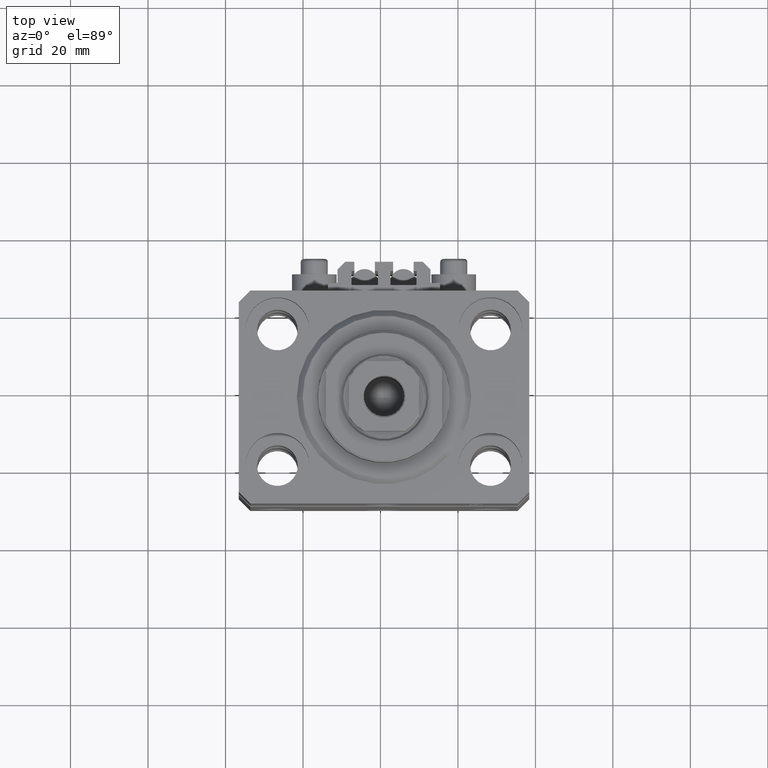
[diagram: clean part render]
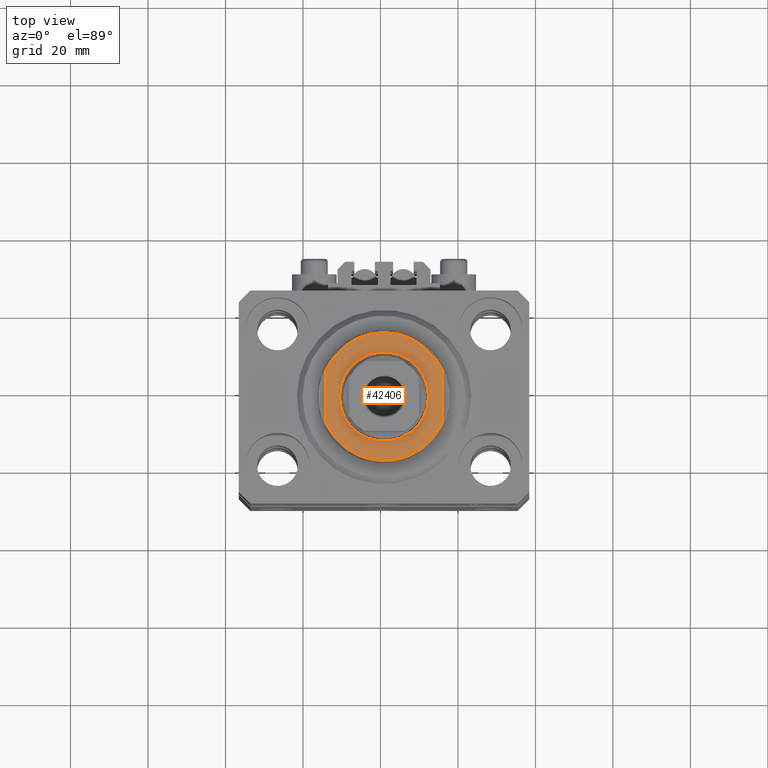
[diagram: same view with one face highlighted and labeled with its STEP entity id]
A machine part, top view. The second image highlights one B-rep face of the part: STEP entity #42406.
In plain terms, the highlighted planar face has unit normal (0, 0, 1).
Its self-contained STEP definition (entity closure, byte-faithful):
#206 = VERTEX_POINT ( 'NONE', #43262 ) ;
#734 = CARTESIAN_POINT ( 'NONE',  ( 0.000000000000000000, 0.000000000000000000, -8.000000000000000000 ) ) ;
#1948 = CARTESIAN_POINT ( 'NONE',  ( -14.99999999999999645, 6.873863542433765517, -8.000000000000000000 ) ) ;
#3260 = VERTEX_POINT ( 'NONE', #1948 ) ;
#3452 = AXIS2_PLACEMENT_3D ( 'NONE', #47887, #28888, #48629 ) ;
#3453 = VECTOR ( 'NONE', #31988, 1000.000000000000000 ) ;
#4155 = CARTESIAN_POINT ( 'NONE',  ( -14.99999999999999645, -6.873863542433765517, -8.000000000000000000 ) ) ;
#5007 = VERTEX_POINT ( 'NONE', #35986 ) ;
#8064 = DIRECTION ( 'NONE',  ( -0.000000000000000000, -0.000000000000000000, 1.000000000000000000 ) ) ;
#8436 = CARTESIAN_POINT ( 'NONE',  ( -11.50000000000000355, 0.000000000000000000, -8.000000000000000000 ) ) ;
#9179 = EDGE_LOOP ( 'NONE', ( #20290, #35973 ) ) ;
#9284 = DIRECTION ( 'NONE',  ( 0.000000000000000000, 0.000000000000000000, -1.000000000000000000 ) ) ;
#9534 = FACE_BOUND ( 'NONE', #9179, .T. ) ;
#9579 = CARTESIAN_POINT ( 'NONE',  ( 15.00000000000000000, -42.42640687119285303, -8.000000000000000000 ) ) ;
#9889 = LINE ( 'NONE', #13571, #42773 ) ;
#10151 = VERTEX_POINT ( 'NONE', #20973 ) ;
#10521 = CIRCLE ( 'NONE', #37256, 16.50000000000000000 ) ;
#10991 = ORIENTED_EDGE ( 'NONE', *, *, #48673, .T. ) ;
#12688 = EDGE_CURVE ( 'NONE', #5007, #47270, #10521, .T. ) ;
#12884 = DIRECTION ( 'NONE',  ( -1.000000000000000000, 0.000000000000000000, 0.000000000000000000 ) ) ;
#13126 = DIRECTION ( 'NONE',  ( -0.000000000000000000, -0.000000000000000000, 1.000000000000000000 ) ) ;
#13571 = CARTESIAN_POINT ( 'NONE',  ( -15.00000000000000000, -42.42640687119285303, -8.000000000000000000 ) ) ;
#13632 = ORIENTED_EDGE ( 'NONE', *, *, #29846, .T. ) ;
#20088 = CARTESIAN_POINT ( 'NONE',  ( 0.000000000000000000, 0.000000000000000000, -8.000000000000000000 ) ) ;
#20253 = CARTESIAN_POINT ( 'NONE',  ( 0.000000000000000000, 0.000000000000000000, -8.000000000000000000 ) ) ;
#20290 = ORIENTED_EDGE ( 'NONE', *, *, #46423, .T. ) ;
#20492 = AXIS2_PLACEMENT_3D ( 'NONE', #27748, #9284, #42798 ) ;
#20839 = ORIENTED_EDGE ( 'NONE', *, *, #48158, .F. ) ;
#20973 = CARTESIAN_POINT ( 'NONE',  ( 14.99999999999999645, 6.873863542433765517, -8.000000000000000000 ) ) ;
#23768 = EDGE_CURVE ( 'NONE', #206, #27478, #45040, .T. ) ;
#24346 = LINE ( 'NONE', #9579, #3453 ) ;
#25853 = DIRECTION ( 'NONE',  ( -0.000000000000000000, -1.000000000000000000, -0.000000000000000000 ) ) ;
#27478 = VERTEX_POINT ( 'NONE', #8436 ) ;
#27748 = CARTESIAN_POINT ( 'NONE',  ( 0.000000000000000000, 0.000000000000000000, -8.000000000000000000 ) ) ;
#28888 = DIRECTION ( 'NONE',  ( 0.000000000000000000, 0.000000000000000000, -1.000000000000000000 ) ) ;
#29846 = EDGE_CURVE ( 'NONE', #10151, #5007, #24346, .T. ) ;
#30748 = DIRECTION ( 'NONE',  ( -1.000000000000000000, 0.000000000000000000, 0.000000000000000000 ) ) ;
#31757 = CIRCLE ( 'NONE', #3452, 16.50000000000000000 ) ;
#31988 = DIRECTION ( 'NONE',  ( 0.000000000000000000, -1.000000000000000000, -0.000000000000000000 ) ) ;
#33721 = DIRECTION ( 'NONE',  ( 0.000000000000000000, 0.000000000000000000, -1.000000000000000000 ) ) ;
#34024 = AXIS2_PLACEMENT_3D ( 'NONE', #20253, #13126, #12884 ) ;
#34821 = CIRCLE ( 'NONE', #37993, 11.50000000000000355 ) ;
#35893 = PLANE ( 'NONE',  #20492 ) ;
#35973 = ORIENTED_EDGE ( 'NONE', *, *, #23768, .T. ) ;
#35986 = CARTESIAN_POINT ( 'NONE',  ( 14.99999999999999645, -6.873863542433765517, -8.000000000000000000 ) ) ;
#37256 = AXIS2_PLACEMENT_3D ( 'NONE', #734, #33721, #30748 ) ;
#37345 = ORIENTED_EDGE ( 'NONE', *, *, #12688, .T. ) ;
#37993 = AXIS2_PLACEMENT_3D ( 'NONE', #20088, #8064, #42531 ) ;
#39602 = FACE_OUTER_BOUND ( 'NONE', #41742, .T. ) ;
#41742 = EDGE_LOOP ( 'NONE', ( #10991, #13632, #37345, #20839 ) ) ;
#42406 = ADVANCED_FACE ( 'NONE', ( #9534, #39602 ), #35893, .T. ) ;
#42531 = DIRECTION ( 'NONE',  ( -1.000000000000000000, 0.000000000000000000, 0.000000000000000000 ) ) ;
#42773 = VECTOR ( 'NONE', #25853, 1000.000000000000000 ) ;
#42798 = DIRECTION ( 'NONE',  ( -1.000000000000000000, 0.000000000000000000, -0.000000000000000000 ) ) ;
#43262 = CARTESIAN_POINT ( 'NONE',  ( 11.50000000000000355, 1.408343819019456570E-15, -8.000000000000000000 ) ) ;
#45040 = CIRCLE ( 'NONE', #34024, 11.50000000000000355 ) ;
#46423 = EDGE_CURVE ( 'NONE', #27478, #206, #34821, .T. ) ;
#47270 = VERTEX_POINT ( 'NONE', #4155 ) ;
#47887 = CARTESIAN_POINT ( 'NONE',  ( 0.000000000000000000, 0.000000000000000000, -8.000000000000000000 ) ) ;
#48158 = EDGE_CURVE ( 'NONE', #3260, #47270, #9889, .T. ) ;
#48629 = DIRECTION ( 'NONE',  ( -1.000000000000000000, 0.000000000000000000, 0.000000000000000000 ) ) ;
#48673 = EDGE_CURVE ( 'NONE', #3260, #10151, #31757, .T. ) ;